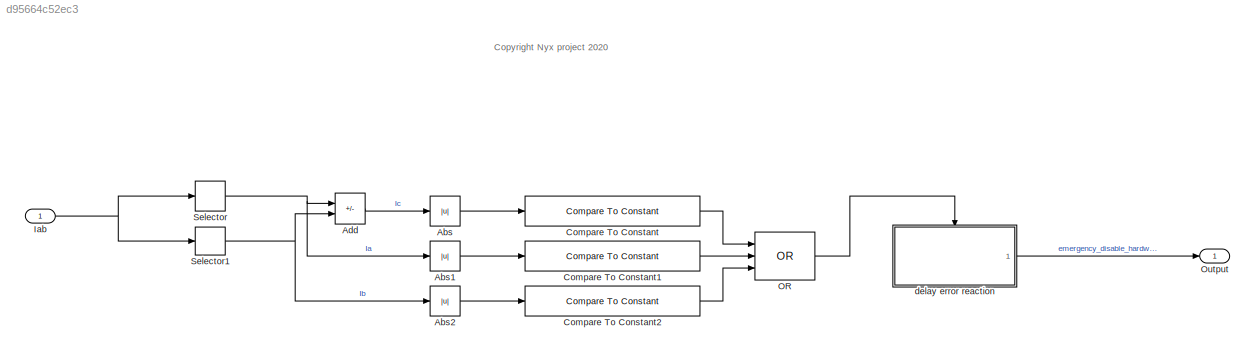
MODEL slx_d95664c52ec3
KIND model
CONFIG AbsTol = auto
CONFIG EnableMultiTasking = off
CONFIG FixedStep = 4*Ts
CONFIG MaxStep = auto
CONFIG MinStep = auto
CONFIG RelTol = 1e-3
CONFIG SampleTimeConstraint = Unconstrained
CONFIG SolverName = FixedStepDiscrete
CONFIG StartTime = 0.0
CONFIG StopTime = 10.0
BLOCK [Abs] Abs
  SaturateOnIntegerOverflow = off
BLOCK [Abs] Abs1
  SaturateOnIntegerOverflow = off
BLOCK [Abs] Abs2
  SaturateOnIntegerOverflow = off
BLOCK [Sum] Add
  IconShape = rectangular
  Inputs = --
  Ports = [2, 1]
  RndMeth = Simplest
BLOCK [Reference] Compare To Constant  REF=simulink/Logic and Bit
Operations/Compare
To Constant
  Ports = [1, 1]
  SourceBlock = simulink/Logic and Bit\nOperations/Compare\nTo Constant
  SourceType = Compare To Constant
BLOCK [Reference] Compare To Constant1  REF=simulink/Logic and Bit
Operations/Compare
To Constant
  Ports = [1, 1]
  SourceBlock = simulink/Logic and Bit\nOperations/Compare\nTo Constant
  SourceType = Compare To Constant
BLOCK [Reference] Compare To Constant2  REF=simulink/Logic and Bit
Operations/Compare
To Constant
  Ports = [1, 1]
  SourceBlock = simulink/Logic and Bit\nOperations/Compare\nTo Constant
  SourceType = Compare To Constant
BLOCK [Inport] Iab
  OutDataTypeStr = single
BLOCK [Logic] OR
  AllPortsSameDT = off
  IconShape = distinctive
  Inputs = 3
  Operator = OR
  OutDataTypeStr = boolean
  Ports = [3, 1]
BLOCK [Outport] Output
BLOCK [Selector] Selector
  IndexOptions = Index vector (dialog)
  Indices = [1]
  InputPortWidth = 2
  OutputSizes = 1
  Ports = [1, 1]
BLOCK [Selector] Selector1
  IndexOptions = Index vector (dialog)
  Indices = [2]
  InputPortWidth = 2
  OutputSizes = 1
  Ports = [1, 1]
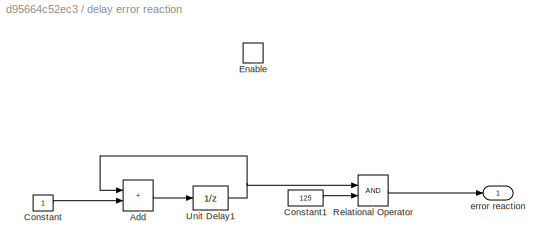
BLOCK [SubSystem] delay error reaction
  Ports = [0, 1, 1]
  TreatAsAtomicUnit = on
BLOCK [Sum] delay error reaction/Add
  IconShape = rectangular
  OutDataTypeStr = uint16
  Ports = [2, 1]
BLOCK [Constant] delay error reaction/Constant
  OutDataTypeStr = uint8
BLOCK [Constant] delay error reaction/Constant1
  OutDataTypeStr = uint16
  Value = 125
BLOCK [EnablePort] delay error reaction/Enable
  Ports = []
  StatesWhenEnabling = reset
BLOCK [RelationalOperator] delay error reaction/Relational Operator
  InputSameDT = off
  OutDataTypeStr = boolean
  Ports = [2, 1]
  RndMeth = Simplest
BLOCK [UnitDelay] delay error reaction/Unit Delay1
  HasFrameUpgradeWarning = on
  SampleTime = -1
BLOCK [Outport] delay error reaction/error reaction
  AttributesFormatString = %<InitialOutput>
  InitialOutput = 0
  OutputWhenDisabled = reset
ANNOTATION (root): <copyright redacted>
LINE Abs1:1 -> Compare To Constant1:1
LINE Abs2:1 -> Compare To Constant2:1
LINE Abs:1 -> Compare To Constant:1
LINE Add:1 -> Abs:1
LINE Compare To Constant1:1 -> OR:2
LINE Compare To Constant2:1 -> OR:3
LINE Compare To Constant:1 -> OR:1
NET Iab:1 -> Selector1:1, Selector:1
LINE OR:1 -> delay error reaction:enable
NET Selector1:1 -> Abs2:1, Add:2
NET Selector:1 -> Abs1:1, Add:1
LINE delay error reaction/Add:1 -> delay error reaction/Unit Delay1:1
LINE delay error reaction/Constant1:1 -> delay error reaction/Relational Operator:2
LINE delay error reaction/Constant:1 -> delay error reaction/Add:2
LINE delay error reaction/Relational Operator:1 -> delay error reaction/error reaction:1
NET delay error reaction/Unit Delay1:1 -> delay error reaction/Add:1, delay error reaction/Relational Operator:1
LINE delay error reaction:1 -> Output:1
note: NET lines group one-source signal fan-out (src -> all destinations, sorted); 1:1 wires keep LINE
